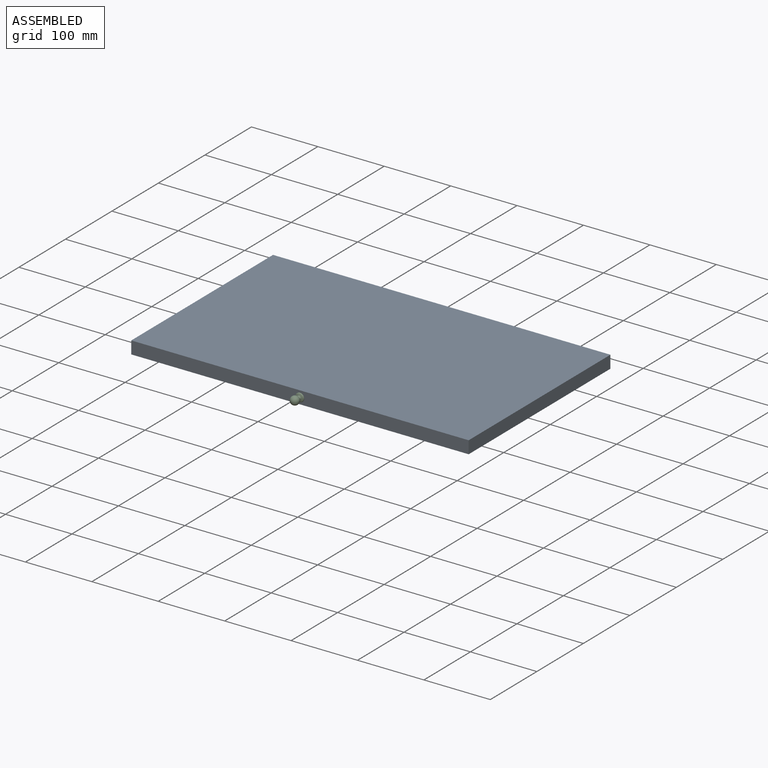
[diagram: assembled view]
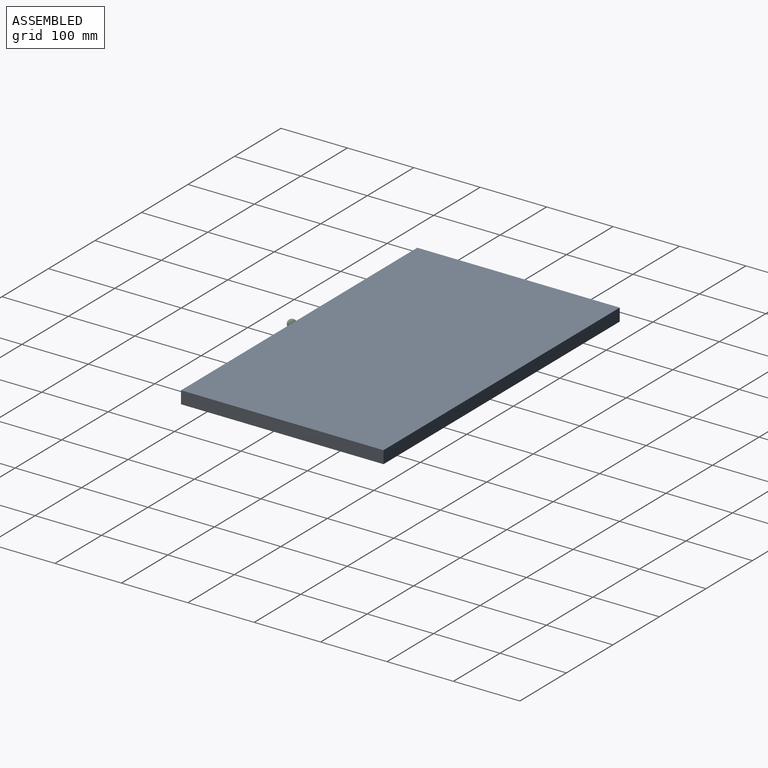
[diagram: assembled view, second angle]
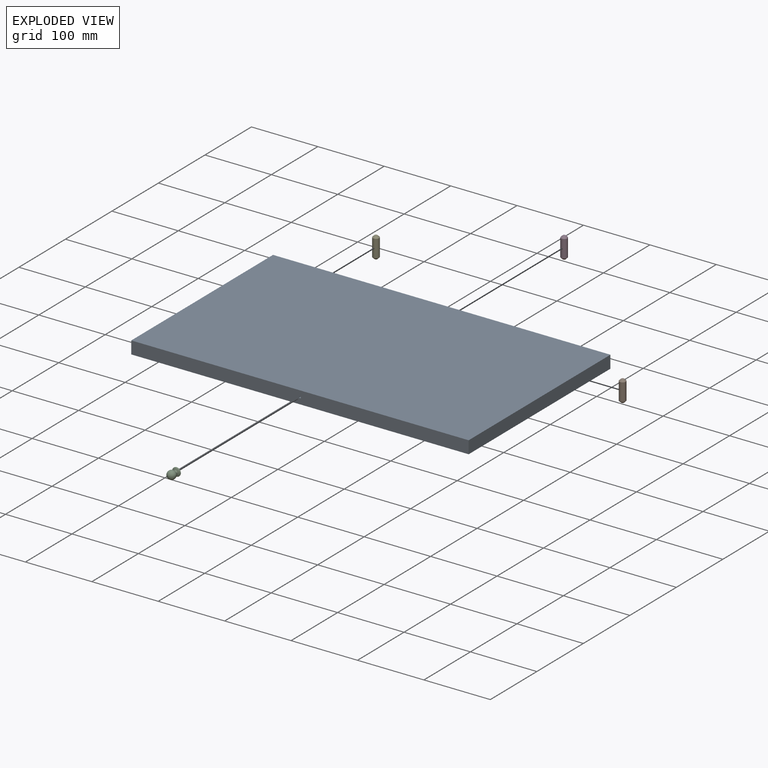
[diagram: exploded view]
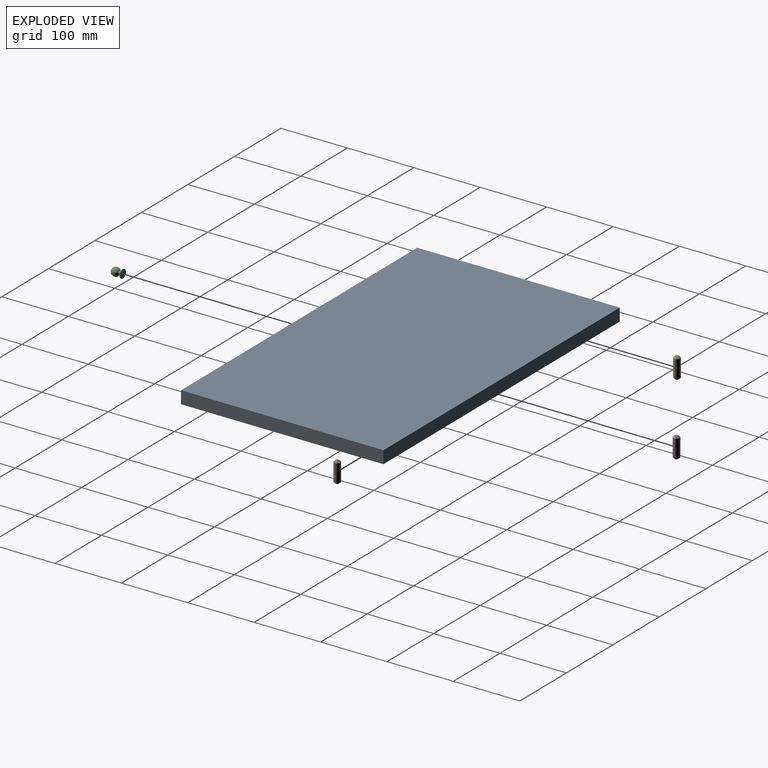
[diagram: exploded view, second angle]
ASSEMBLY  parts=5 mates=4
PART A: 14 faces, bbox 508x304.8x19.1 mm
  f0: plane 304.8x19.05mm, normal (-1,0,0), area 5806.4mm2, adj f1,f3,f4,f5
  f1: plane 508x19.05mm, normal (0,-1,0), area 9672.3mm2, adj f0,f2,f4,f5,f6
  f2: plane 304.8x19.05mm, normal (1,0,0), area 5806.4mm2, adj f1,f3,f4,f5
  f3: plane 508x19.05mm, normal (0,1,0), area 9677.4mm2, adj f0,f2,f4,f5
  f4: plane 508x304.8mm, normal (0,0,1), area 154838.4mm2, adj f0,f1,f2,f3
  f5: plane 508x304.8mm, normal (0,0,-1), area 154624.6mm2, adj f0,f1,f2,f3,f8,f10,f12
  f6: cylinder r=1.27mm len=25.4mm, axis (0,-1,0), area 202.7mm2, adj f1,f7
  f7: plane 2.54x2.54mm, normal (0,-1,0), area 5.1mm2, adj f6
  f8: cylinder r=4.76mm len=12.7mm, axis (0,0,-1), area 380mm2, adj f5,f9
  f9: plane 9.53x9.53mm, normal (0,0,-1), area 71.3mm2, adj f8
  f10: cylinder r=4.76mm len=12.7mm, axis (0,0,-1), area 380mm2, adj f5,f11
  f11: plane 9.53x9.53mm, normal (0,0,-1), area 71.3mm2, adj f10
  f12: cylinder r=4.76mm len=12.7mm, axis (0,0,-1), area 380mm2, adj f5,f13
  f13: plane 9.53x9.53mm, normal (0,0,-1), area 71.3mm2, adj f12
PART B: 5 faces, bbox 9.5x9.5x31.8 mm
  f0: cylinder r=4.76mm len=26.67mm, axis (0,0,-1), area 798.1mm2, adj f3,f4
  f1: plane 4.45x4.45mm, normal (0,0,1), area 15.5mm2, adj f4
  f2: plane 4.45x4.45mm, normal (0,0,-1), area 15.5mm2, adj f3
  f3: cone r=4.76mm half-angle=45deg, axis (0,0,1), area 78.8mm2, adj f0,f2
  f4: cone r=2.22mm half-angle=45deg, axis (0,0,-1), area 78.8mm2, adj f0,f1
PART C: 10 faces, bbox 13.7x17.9x13.7 mm
  f0: plane 12.7x12.7mm, normal (0,1,0), area 121.6mm2, adj f1,f8
  f1: cylinder r=6.35mm len=12.7mm, axis (0,-1,0), area 15.2mm2, adj f0,f5
  f2: cone r=6.35mm half-angle=70deg, axis (0,1,0), area 63.6mm2, adj f5,f6
  f3: cylinder r=2.54mm len=5.08mm, axis (0,-1,0), area 13.9mm2, adj f6,f7
  f4: sphere r=6.35mm, area 472.8mm2, adj f7
  f5: torus R=5.08mm, axis (0,1,0), area 59mm2, adj f1,f2
  f6: torus R=3.81mm, axis (0,-1,0), area 27.6mm2, adj f2,f3
  f7: torus R=3.81mm, axis (0,-1,0), area 23.1mm2, adj f3,f4
  f8: cylinder r=1.27mm len=12.7mm, axis (0,1,0), area 101.3mm2, adj f0,f9
  f9: plane 2.54x2.54mm, normal (0,1,0), area 5.1mm2, adj f8
PART D: same geometry as B
PART E: same geometry as B
PLACE A t=(-254,-152.4,-19.05)mm
PLACE B t=(190.5,114.3,-38.1)mm
PLACE C t=(0,-152.4,-9.52)mm
PLACE D t=(0,114.3,-38.1)mm
PLACE E t=(-190.5,114.3,-38.1)mm
MATE fastened D.f0 <-> A.f10  axis (0,0,1) through (0,114.3,-6.35)mm
MATE fastened B.f0 <-> A.f8  axis (0,0,1) through (190.5,114.3,-6.35)mm
MATE fastened A.f6 <-> C.f1  axis (0,-1,0) through (0,-152.4,-9.52)mm
MATE fastened A.f12 <-> E.f0  axis (0,0,-1) through (-190.5,114.3,-19.05)mm
